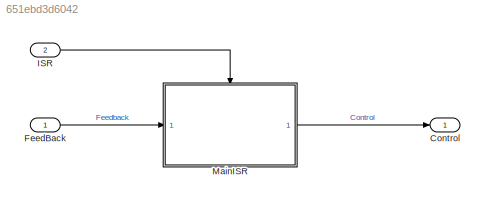
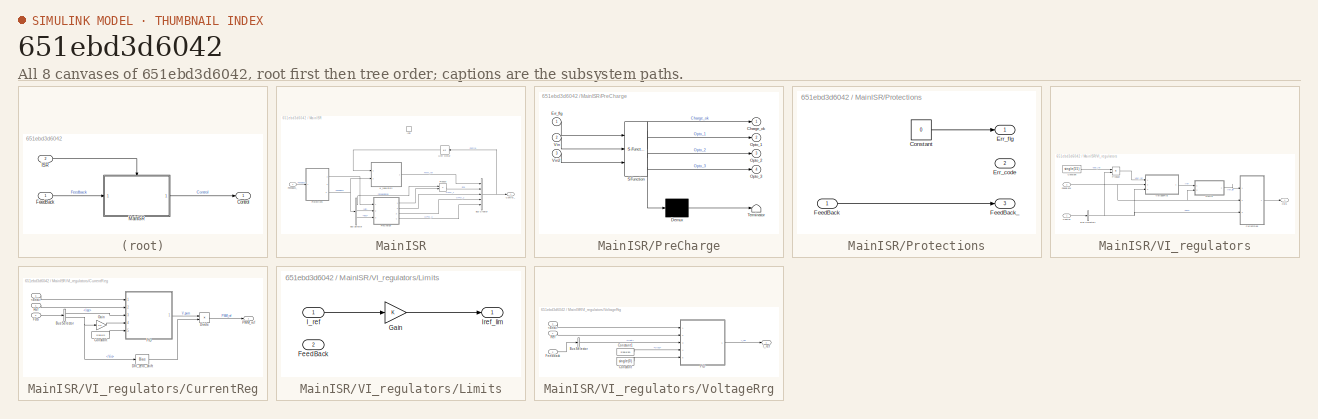
[diagram: thumbnail index - all 8 canvases of the model, root first then tree order]
MODEL slx_651ebd3d6042
KIND model
CONFIG AbsTol = auto
CONFIG EnableMultiTasking = off
CONFIG FixedStep = auto
CONFIG MaxStep = auto
CONFIG MinStep = auto
CONFIG RelTol = 1e-3
CONFIG SampleTimeConstraint = Unconstrained
CONFIG SolverName = VariableStepAuto
CONFIG StartTime = 0.0
CONFIG StopTime = 10.0
BLOCK [Outport] Control
  BusOutputAsStruct = on
  OutDataTypeStr = Bus: Control_st
BLOCK [Inport] FeedBack
  BusOutputAsStruct = on
  OutDataTypeStr = Bus: FeedBack_st
BLOCK [Inport] ISR
  OutputFunctionCall = on
  Port = 2
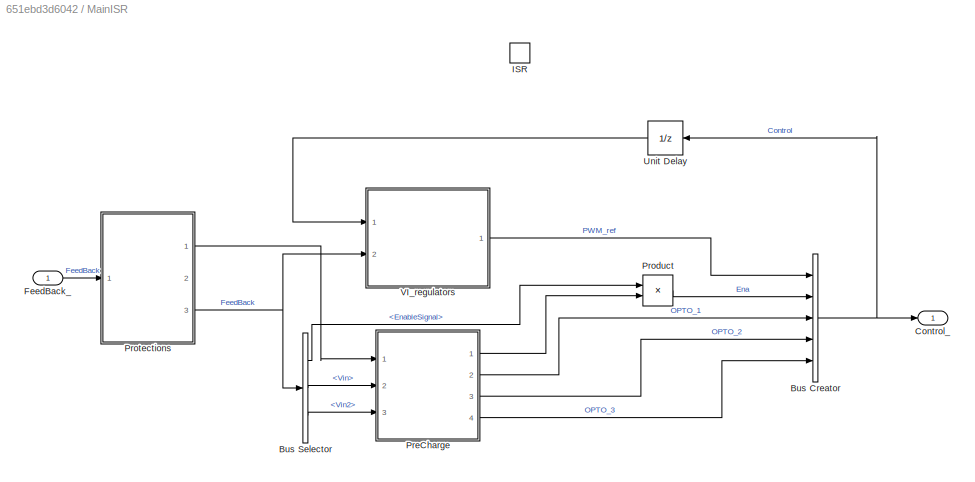
BLOCK [SubSystem] MainISR
  FunctionInterfaceSpec = Allow arguments (Optimized)
  Ports = [1, 1, 0, 1]
  RequestExecContextInheritance = off
  TreatAsAtomicUnit = on
BLOCK [BusCreator] MainISR/Bus Creator
  DisplayOption = bar
  InheritFromInputs = on
  Inputs = 5
  NonVirtualBus = on
  OutDataTypeStr = Bus: Control_st
  Ports = [5, 1]
BLOCK [BusSelector] MainISR/Bus Selector
  OutputSignals = EnableSignal,Vin,Vin2
  Ports = [1, 3]
BLOCK [Outport] MainISR/Control_
BLOCK [Inport] MainISR/FeedBack_
BLOCK [TriggerPort] MainISR/ISR
  PortDimensions = 1
  Ports = []
  StatesWhenEnabling = held
  TriggerType = function-call
  VariantControl = Variant
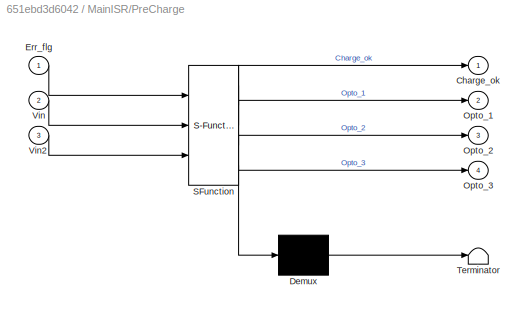
BLOCK [SubSystem] MainISR/PreCharge
  ErrorFcn = Stateflow.Translate.translate
  FunctionInterfaceSpec = Allow arguments (Optimized)
  PermitHierarchicalResolution = ExplicitOnly
  Ports = [3, 4]
  RTWSystemCode = Nonreusable function
  RequestExecContextInheritance = off
  SFBlockType = Chart
  TreatAsAtomicUnit = on
BLOCK [Demux] MainISR/PreCharge/ Demux 
  Outputs = 1
  Ports = [1, 1]
BLOCK [S-Function] MainISR/PreCharge/ SFunction 
  EnableBusSupport = on
  FunctionName = sf_sfun
  PortCounts = [3 5]
  Ports = [3, 5]
  SFcnIsStateOwnerBlock = off
  SFunctionDeploymentMode = off
  Tag = Stateflow S-Function 3
BLOCK [Terminator] MainISR/PreCharge/ Terminator 
BLOCK [Outport] MainISR/PreCharge/Charge_ok
BLOCK [Inport] MainISR/PreCharge/Err_flg
BLOCK [Outport] MainISR/PreCharge/Opto_1
  Port = 2
BLOCK [Outport] MainISR/PreCharge/Opto_2
  Port = 3
BLOCK [Outport] MainISR/PreCharge/Opto_3
  Port = 4
BLOCK [Inport] MainISR/PreCharge/Vin
  Port = 2
BLOCK [Inport] MainISR/PreCharge/Vin2
  Port = 3
BLOCK [Product] MainISR/Product
  OutDataTypeStr = Inherit: Inherit via back propagation
  Ports = [2, 1]
BLOCK [SubSystem] MainISR/Protections
  Ports = [1, 3]
  RequestExecContextInheritance = off
BLOCK [Constant] MainISR/Protections/Constant
  OutDataTypeStr = uint16
  SampleTime = -1
  Value = 0
BLOCK [Outport] MainISR/Protections/Err_code
  Port = 2
BLOCK [Outport] MainISR/Protections/Err_flg
BLOCK [Inport] MainISR/Protections/FeedBack
BLOCK [Outport] MainISR/Protections/FeedBack_
  Port = 3
BLOCK [UnitDelay] MainISR/Unit Delay
  HasFrameUpgradeWarning = on
  SampleTime = -1
BLOCK [SubSystem] MainISR/VI_regulators
  MinAlgLoopOccurrences = on
  Ports = [2, 1]
  RTWSystemCode = Reusable function
  RequestExecContextInheritance = off
  TreatAsAtomicUnit = on
BLOCK [BusSelector] MainISR/VI_regulators/Bus Selector1
  OutputSignals = Ena
  Ports = [1, 1]
BLOCK [Constant] MainISR/VI_regulators/Constant
  Value = single(55)
BLOCK [Inport] MainISR/VI_regulators/Control
BLOCK [SubSystem] MainISR/VI_regulators/CurrentReg
  Ports = [3, 1]
  RequestExecContextInheritance = off
BLOCK [Inport] MainISR/VI_regulators/CurrentReg/<Ena>
  Port = 3
BLOCK [BusSelector] MainISR/VI_regulators/CurrentReg/Bus Selector
  OutputSignals = Iout,Vin
  Ports = [1, 2]
BLOCK [Constant] MainISR/VI_regulators/CurrentReg/Constant
  Value = single(0)
BLOCK [Bias] MainISR/VI_regulators/CurrentReg/DIV_zero_shift
  Bias = 0.1
  SaturateOnIntegerOverflow = off
BLOCK [Product] MainISR/VI_regulators/CurrentReg/Divide
  Inputs = */
  Ports = [2, 1]
BLOCK [Inport] MainISR/VI_regulators/CurrentReg/Fdb
  Port = 2
BLOCK [Gain] MainISR/VI_regulators/CurrentReg/Gain
  Gain = 0.5
BLOCK [SubSystem] MainISR/VI_regulators/CurrentReg/PID
  FunctionInterfaceSpec = Allow arguments (Optimized)
  High = 60
  Kc = 0.9
  Ki = Ki_I
  Kp = Kp_I
  Low = 0
  MinAlgLoopOccurrences = on
  Ports = [5, 1]
  RTWFcnNameOpts = Use subsystem name
  RTWFileNameOpts = Use function name
  RTWSystemCode = Reusable function
  ReferencedSubsystem = PID_
  RequestExecContextInheritance = off
  TreatAsAtomicUnit = on
BLOCK [Outport] MainISR/VI_regulators/CurrentReg/PWM_ref
BLOCK [Inport] MainISR/VI_regulators/CurrentReg/Ref
BLOCK [Inport] MainISR/VI_regulators/FeedBack
  Port = 2
BLOCK [SubSystem] MainISR/VI_regulators/Limits
  Ports = [2, 1]
  RequestExecContextInheritance = off
BLOCK [Inport] MainISR/VI_regulators/Limits/FeedBack
  Port = 2
BLOCK [Gain] MainISR/VI_regulators/Limits/Gain
BLOCK [Inport] MainISR/VI_regulators/Limits/I_ref
BLOCK [Outport] MainISR/VI_regulators/Limits/Iref_lim
BLOCK [Outport] MainISR/VI_regulators/Out1
BLOCK [Product] MainISR/VI_regulators/Product
  Ports = [2, 1]
BLOCK [SubSystem] MainISR/VI_regulators/VoltageRrg
  Ports = [3, 1]
  RequestExecContextInheritance = off
BLOCK [Inport] MainISR/VI_regulators/VoltageRrg/<Ena>
  Port = 3
BLOCK [BusSelector] MainISR/VI_regulators/VoltageRrg/Bus Selector
  OutputSignals = Vout
  Ports = [1, 1]
BLOCK [Constant] MainISR/VI_regulators/VoltageRrg/Constant
  Value = single(0)
BLOCK [Constant] MainISR/VI_regulators/VoltageRrg/Constant1
  Value = single(30)
BLOCK [Inport] MainISR/VI_regulators/VoltageRrg/Feedback
  Port = 2
BLOCK [Outport] MainISR/VI_regulators/VoltageRrg/I_ref
BLOCK [SubSystem] MainISR/VI_regulators/VoltageRrg/PID
  FunctionInterfaceSpec = Allow arguments (Optimized)
  High = 60
  Kc = 0.9
  Ki = Ki_V
  Kp = Kp_V
  Low = 0
  MinAlgLoopOccurrences = on
  Ports = [5, 1]
  RTWFcnNameOpts = Use subsystem name
  RTWFileNameOpts = Use function name
  RTWSystemCode = Reusable function
  ReferencedSubsystem = PID_
  RequestExecContextInheritance = off
  TreatAsAtomicUnit = on
BLOCK [Inport] MainISR/VI_regulators/VoltageRrg/Ref
LINE FeedBack:1 -> MainISR:1
LINE ISR:1 -> MainISR:trigger
NET MainISR/Bus Creator:1 -> MainISR/Control_:1, MainISR/Unit Delay:1
LINE MainISR/Bus Selector:1 -> MainISR/Product:1
LINE MainISR/Bus Selector:2 -> MainISR/PreCharge:2
LINE MainISR/Bus Selector:3 -> MainISR/PreCharge:3
LINE MainISR/FeedBack_:1 -> MainISR/Protections:1
LINE MainISR/PreCharge:1 -> MainISR/Product:2
LINE MainISR/PreCharge:2 -> MainISR/Bus Creator:3
LINE MainISR/PreCharge:3 -> MainISR/Bus Creator:4
LINE MainISR/PreCharge:4 -> MainISR/Bus Creator:5
LINE MainISR/Product:1 -> MainISR/Bus Creator:2
LINE MainISR/Protections/Constant:1 -> MainISR/Protections/Err_flg:1
LINE MainISR/Protections/FeedBack:1 -> MainISR/Protections/FeedBack_:1
LINE MainISR/Protections:1 -> MainISR/PreCharge:1
NET MainISR/Protections:3 -> MainISR/Bus Selector:1, MainISR/VI_regulators:2
LINE MainISR/Unit Delay:1 -> MainISR/VI_regulators:1
NET MainISR/VI_regulators/Bus Selector1:1 -> MainISR/VI_regulators/CurrentReg:3, MainISR/VI_regulators/Product:2, MainISR/VI_regulators/VoltageRrg:3
LINE MainISR/VI_regulators/Constant:1 -> MainISR/VI_regulators/Product:1
LINE MainISR/VI_regulators/Control:1 -> MainISR/VI_regulators/Bus Selector1:1
LINE MainISR/VI_regulators/CurrentReg/<Ena>:1 -> MainISR/VI_regulators/CurrentReg/PID:1
LINE MainISR/VI_regulators/CurrentReg/Bus Selector:1 -> MainISR/VI_regulators/CurrentReg/PID:3
NET MainISR/VI_regulators/CurrentReg/Bus Selector:2 -> MainISR/VI_regulators/CurrentReg/DIV_zero_shift:1, MainISR/VI_regulators/CurrentReg/Gain:1
LINE MainISR/VI_regulators/CurrentReg/Constant:1 -> MainISR/VI_regulators/CurrentReg/PID:5
LINE MainISR/VI_regulators/CurrentReg/DIV_zero_shift:1 -> MainISR/VI_regulators/CurrentReg/Divide:2
LINE MainISR/VI_regulators/CurrentReg/Divide:1 -> MainISR/VI_regulators/CurrentReg/PWM_ref:1
LINE MainISR/VI_regulators/CurrentReg/Fdb:1 -> MainISR/VI_regulators/CurrentReg/Bus Selector:1
LINE MainISR/VI_regulators/CurrentReg/Gain:1 -> MainISR/VI_regulators/CurrentReg/PID:4
LINE MainISR/VI_regulators/CurrentReg/PID:1 -> MainISR/VI_regulators/CurrentReg/Divide:1
LINE MainISR/VI_regulators/CurrentReg/Ref:1 -> MainISR/VI_regulators/CurrentReg/PID:2
LINE MainISR/VI_regulators/CurrentReg:1 -> MainISR/VI_regulators/Out1:1
NET MainISR/VI_regulators/FeedBack:1 -> MainISR/VI_regulators/CurrentReg:2, MainISR/VI_regulators/Limits:2, MainISR/VI_regulators/VoltageRrg:2
LINE MainISR/VI_regulators/Limits/Gain:1 -> MainISR/VI_regulators/Limits/Iref_lim:1
LINE MainISR/VI_regulators/Limits/I_ref:1 -> MainISR/VI_regulators/Limits/Gain:1
LINE MainISR/VI_regulators/Limits:1 -> MainISR/VI_regulators/CurrentReg:1
LINE MainISR/VI_regulators/Product:1 -> MainISR/VI_regulators/VoltageRrg:1
LINE MainISR/VI_regulators/VoltageRrg/<Ena>:1 -> MainISR/VI_regulators/VoltageRrg/PID:1
LINE MainISR/VI_regulators/VoltageRrg/Bus Selector:1 -> MainISR/VI_regulators/VoltageRrg/PID:3
LINE MainISR/VI_regulators/VoltageRrg/Constant1:1 -> MainISR/VI_regulators/VoltageRrg/PID:4
LINE MainISR/VI_regulators/VoltageRrg/Constant:1 -> MainISR/VI_regulators/VoltageRrg/PID:5
LINE MainISR/VI_regulators/VoltageRrg/Feedback:1 -> MainISR/VI_regulators/VoltageRrg/Bus Selector:1
LINE MainISR/VI_regulators/VoltageRrg/PID:1 -> MainISR/VI_regulators/VoltageRrg/I_ref:1
LINE MainISR/VI_regulators/VoltageRrg/Ref:1 -> MainISR/VI_regulators/VoltageRrg/PID:2
LINE MainISR/VI_regulators/VoltageRrg:1 -> MainISR/VI_regulators/Limits:1
LINE MainISR/VI_regulators:1 -> MainISR/Bus Creator:1
LINE MainISR:1 -> Control:1
note: NET lines group one-source signal fan-out (src -> all destinations, sorted); 1:1 wires keep LINE
CHART MainISR/PreCharge states=6 transitions=7
  STATE_LABEL 'WORK_MODE'
  STATE_LABEL 'START\nentry:\nOpto_1=0;\nOpto_2=0;\nOpto_3=0;\nCharge_ok=0;\nWait_cnt=0;\nWait_trashold=2000;\n'
  STATE_LABEL 'PRECARGE_START\nentry:\nOpto_3=1;\nduring:\nWait_cnt = uint16(temporalCount(tick)) ;\n'
  STATE_LABEL 'PRECHARGE_END\nentry:\nOpto_1=1;\nOpto_2=1;\nCharge_ok=1;'
  STATE_LABEL 'PRECHARGE_FAIL\nentry:\nCharge_fail=1;\nCharge_ok=0;'
  STATE_LABEL '[Vin2>VoltageLevel]'
  STATE_LABEL '[Wait_trashold < Wait_cnt]'
  STATE_LABEL '[(Vin2-Vin)<8.1]'
  STATE_LABEL 'START\nentry:\nOpto_1=0;\nOpto_2=0;\nOpto_3=0;\nCharge_ok=0;\nWait_cnt=0;\nWait_trashold=2000;\n'
  STATE_LABEL 'PRECARGE_START\nentry:\nOpto_3=1;\nduring:\nWait_cnt = uint16(temporalCount(tick)) ;\n'
  STATE_LABEL 'PRECHARGE_END\nentry:\nOpto_1=1;\nOpto_2=1;\nCharge_ok=1;'
  STATE_LABEL 'PRECHARGE_FAIL\nentry:\nCharge_fail=1;\nCharge_ok=0;'
  STATE_LABEL 'ERROR_MODE\n\nentry:\nOpto_1=0;\nOpto_2=0;\nOpto_3=0;\nCharge_ok=0;\nWait_cnt=0;\nWait_trashold=2000;'
CHART  states=0 transitions=0
